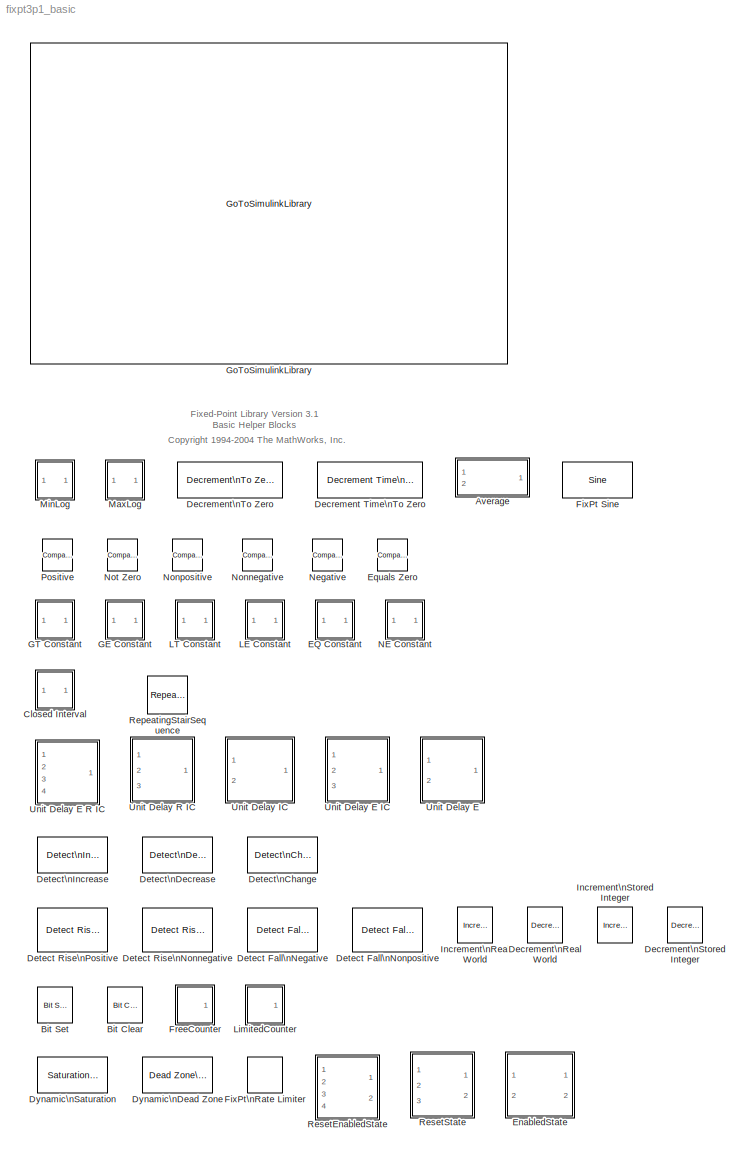
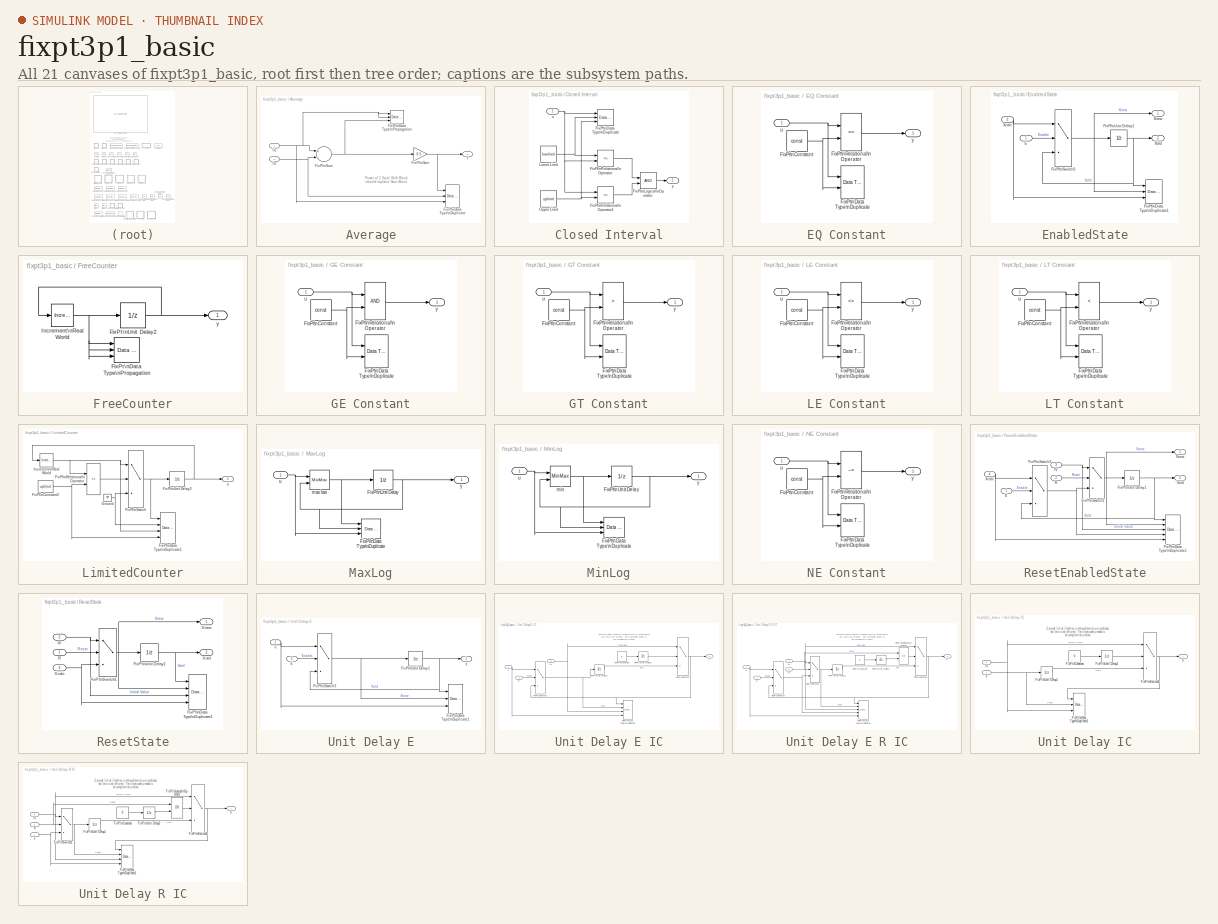
[diagram: thumbnail index - all 21 canvases of the model, root first then tree order]
MODEL fixpt3p1_basic
KIND library
BLOCK [SubSystem] Average
  MaskDescription = Compute the average of the two inputs.
  MaskDisplay = fprintf('(u1+u2) / 2')\npatch([2 2 10 10 4 4 8 8 4 4 2 ],[2 10 10 8 8 6 6 4 4 2 2 ],[0 0 0],'bottom-right');
  MaskHelp = web(fpbhelp('average'));
  MaskIconFrame = on
  MaskIconOpaque = on
  MaskIconRotate = none
  MaskIconUnits = normalized
  MaskSelfModifiable = on
  MaskType = Fixed-Point Average
  MinAlgLoopOccurrences = off
  Ports = [2, 1]
  PropExecContextAcrossSSBoundary = on
  RTWSystemCode = Auto
  TreatAsAtomicUnit = off
BLOCK [Reference] Average/FixPt\nData Type\nDuplicate  REF=simulink/Signal\nAttributes/Data Type\nDuplicate
  NumInputPorts = 3
  Ports = [3]
  SourceBlock = simulink/Signal\nAttributes/Data Type\nDuplicate
  SourceType = Data Type Duplicate
BLOCK [Reference] Average/FixPt\nData Type\nPropagation  REF=simulink/Signal\nAttributes/Data Type\nPropagation
  BiasAdd = 0
  BiasBase = Bias1+Bias2
  BiasMult = 1
  IfRefDouble = double
  IfRefSingle = single
  IsSigned = IsSigned1
  NumBitsAdd = 0
  NumBitsAllowFinal = 1:128
  NumBitsBase = NumBits1
  NumBitsMult = 2
  Ports = [3]
  PropDataType = sfix(16)
  PropDataTypeMode = Inherit via propagation rule
  PropScaling = 2^-10
  PropScalingMode = Inherit via propagation rule
  SlopeAdd = 0
  SlopeBase = Slope1
  SlopeMult = 1
  SourceBlock = simulink/Signal\nAttributes/Data Type\nPropagation
  SourceType = Data Type Propagation
  ValuesUsedBestPrec = [5 -7]
BLOCK [Gain] Average/FixPt\nGain
  Gain = 0.5
  OutDataTypeMode = Inherit via back propagation
  OutScaling = 2^-10
  ParameterDataType = ufix(8)
  ParameterDataTypeMode = Specify via dialog
  ParameterScaling = 2^-1
  ParameterScalingMode = Use specified scaling
  SaturateOnIntegerOverflow = off
BLOCK [Sum] Average/FixPt\nSum
  InputSameDT = off
  OutDataTypeMode = Inherit via back propagation
  OutScaling = 2^-10
  Ports = [2, 1]
  SaturateOnIntegerOverflow = off
BLOCK [Inport] Average/U1
  IconDisplay = Port number
  LatchInput = off
BLOCK [Inport] Average/U2
  IconDisplay = Port number
  LatchInput = off
  Port = 2
BLOCK [Outport] Average/Y
  BusOutputAsStruct = off
  IconDisplay = Port number
  InitialOutput = 0
BLOCK [Reference] Bit Clear  REF=simulink/Logic and Bit\nOperations/Bit Clear
  Ports = [1, 1]
  ShowPortLabels = on
  SourceBlock = simulink/Logic and Bit\nOperations/Bit Clear
  SourceType = Bit Clear
  iBit = 0
BLOCK [Reference] Bit Set  REF=simulink/Logic and Bit\nOperations/Bit Set
  Ports = [1, 1]
  ShowPortLabels = on
  SourceBlock = simulink/Logic and Bit\nOperations/Bit Set
  SourceType = Bit Set
  iBit = 0
BLOCK [SubSystem] Closed Interval
  MaskCallbackString = |
  MaskDescription = If the input is in the closed interval between the lower limit and the upper limit, then the output is TRUE, otherwise it is FALSE.
  MaskDisplay = plot([0 1],[0.3 0.3],[0.3 0.3],[0 1],[0 0.2 0.2 0.55 0.55 1],[0.35 0.35 0.6 0.6 0.35 0.35]);\npatch([2 2 10 10 4 4 8 8 4 4 2 ],[2 10 10 8 8 6 6 4 4 2 2 ],[0 0 0],'bottom-right');
  MaskEnableString = on,on
  MaskIconFrame = on
  MaskIconOpaque = on
  MaskIconRotate = none
  MaskIconUnits = normalized
  MaskPromptString = Upper limit:|Lower Limit:
  MaskStyleString = edit,edit
  MaskTabNameString = ,
  MaskToolTipString = on,on
  MaskTunableValueString = on,on
  MaskType = Fixed-Point Closed Interval
  MaskValueString = 4|2
  MaskVarAliasString = ,
  MaskVariables = uplimit=@1;lowlimit=@2;
  MaskVisibilityString = on,on
  MinAlgLoopOccurrences = off
  Ports = [1, 1]
  PropExecContextAcrossSSBoundary = on
  RTWSystemCode = Auto
  TreatAsAtomicUnit = off
BLOCK [Reference] Closed Interval/FixPt\nData Type\nDuplicate  REF=simulink/Signal\nAttributes/Data Type\nDuplicate
  NumInputPorts = 3
  Ports = [3]
  SourceBlock = simulink/Signal\nAttributes/Data Type\nDuplicate
  SourceType = Data Type Duplicate
BLOCK [Logic] Closed Interval/FixPt\nLogical\nOperator
  AllPortsSameDT = off
  OutDataTypeMode = Specify via dialog
  Ports = [2, 1]
BLOCK [RelationalOperator] Closed Interval/FixPt\nRelational\nOperator
  InputSameDT = off
  LogicOutDataTypeMode = Specify via dialog
  Operator = <=
  ZeroCross = off
BLOCK [RelationalOperator] Closed Interval/FixPt\nRelational\nOperator1
  InputSameDT = off
  LogicOutDataTypeMode = Specify via dialog
  Operator = <=
  ZeroCross = off
BLOCK [Constant] Closed Interval/Lower Limit
  ConRadixGroup = Best Precision: Vector-wise
  OutDataTypeMode = Inherit via back propagation
  OutScaling = 2^-1000
  Value = lowlimit
BLOCK [Constant] Closed Interval/Upper Limit
  ConRadixGroup = Best Precision: Vector-wise
  OutDataTypeMode = Inherit via back propagation
  OutScaling = 2^-1000
  Value = uplimit
BLOCK [Inport] Closed Interval/u
  IconDisplay = Port number
  LatchInput = off
BLOCK [Outport] Closed Interval/y
  BusOutputAsStruct = off
  IconDisplay = Port number
BLOCK [Reference] Decrement Time\nTo Zero  REF=simulink/Additional Math\n& Discrete/Additional Math:\nIncrement - Decrement/Decrement Time\nTo Zero
  Ports = [1, 1]
  ShowPortLabels = on
  SourceBlock = simulink/Additional Math\n& Discrete/Additional Math:\nIncrement - Decrement/Decrement Time\nTo Zero
  SourceType = Decrement Time To Zero
BLOCK [Reference] Decrement\nReal World  REF=simulink/Additional Math\n& Discrete/Additional Math:\nIncrement - Decrement/Decrement\nReal World
  Ports = [1, 1]
  ShowPortLabels = on
  SourceBlock = simulink/Additional Math\n& Discrete/Additional Math:\nIncrement - Decrement/Decrement\nReal World
  SourceType = Real World Value Decrement
BLOCK [Reference] Decrement\nStored Integer  REF=simulink/Additional Math\n& Discrete/Additional Math:\nIncrement - Decrement/Decrement\nStored Integer
  Ports = [1, 1]
  ShowPortLabels = on
  SourceBlock = simulink/Additional Math\n& Discrete/Additional Math:\nIncrement - Decrement/Decrement\nStored Integer
  SourceType = Stored Integer Value Decrement
BLOCK [Reference] Decrement\nTo Zero  REF=simulink/Additional Math\n& Discrete/Additional Math:\nIncrement - Decrement/Decrement\nTo Zero
  Ports = [1, 1]
  ShowPortLabels = on
  SourceBlock = simulink/Additional Math\n& Discrete/Additional Math:\nIncrement - Decrement/Decrement\nTo Zero
  SourceType = Decrement To Zero
BLOCK [Reference] Detect Fall\nNegative  REF=simulink/Logic and Bit\nOperations/Detect Fall\nNegative
  Ports = [1, 1]
  ShowPortLabels = on
  SourceBlock = simulink/Logic and Bit\nOperations/Detect Fall\nNegative
  SourceType = Detect Fall Negative
  vinit = 0
BLOCK [Reference] Detect Fall\nNonpositive  REF=simulink/Logic and Bit\nOperations/Detect Fall\nNonpositive
  Ports = [1, 1]
  ShowPortLabels = on
  SourceBlock = simulink/Logic and Bit\nOperations/Detect Fall\nNonpositive
  SourceType = Detect Fall Nonpositive
  vinit = 0
BLOCK [Reference] Detect Rise\nNonnegative  REF=simulink/Logic and Bit\nOperations/Detect Rise\nNonnegative
  Ports = [1, 1]
  ShowPortLabels = on
  SourceBlock = simulink/Logic and Bit\nOperations/Detect Rise\nNonnegative
  SourceType = Detect Rise Nonnegative
  vinit = 0
BLOCK [Reference] Detect Rise\nPositive  REF=simulink/Logic and Bit\nOperations/Detect Rise\nPositive
  Ports = [1, 1]
  ShowPortLabels = on
  SourceBlock = simulink/Logic and Bit\nOperations/Detect Rise\nPositive
  SourceType = Detect Rise Positive
  vinit = 0
BLOCK [Reference] Detect\nChange  REF=simulink/Logic and Bit\nOperations/Detect\nChange
  Ports = [1, 1]
  ShowPortLabels = on
  SourceBlock = simulink/Logic and Bit\nOperations/Detect\nChange
  SourceType = Detect Change
  vinit = 0
BLOCK [Reference] Detect\nDecrease  REF=simulink/Logic and Bit\nOperations/Detect\nDecrease
  Ports = [1, 1]
  ShowPortLabels = on
  SourceBlock = simulink/Logic and Bit\nOperations/Detect\nDecrease
  SourceType = Detect Decrease
  vinit = 0.0
BLOCK [Reference] Detect\nIncrease  REF=simulink/Logic and Bit\nOperations/Detect\nIncrease
  Ports = [1, 1]
  ShowPortLabels = on
  SourceBlock = simulink/Logic and Bit\nOperations/Detect\nIncrease
  SourceType = Detect Increase
  vinit = 0.0
BLOCK [Reference] Dynamic\nDead Zone  REF=simulink/Discontinuities/Dead Zone\nDynamic
  Ports = [3, 1]
  ShowPortLabels = on
  SourceBlock = simulink/Discontinuities/Dead Zone\nDynamic
  SourceType = Dead Zone Dynamic
BLOCK [Reference] Dynamic\nSaturation  REF=simulink/Discontinuities/Saturation\nDynamic
  Ports = [3, 1]
  ShowPortLabels = on
  SourceBlock = simulink/Discontinuities/Saturation\nDynamic
  SourceType = Saturation Dynamic
BLOCK [SubSystem] EQ Constant
  MaskCallbackString = fixptdialog(gcbh)
  MaskDescription = Determine if a signal is equal to a constant.
  MaskDisplay = disp(str)\npatch([2 2 10 10 4 4 8 8 4 4 2 ],[2 10 10 8 8 6 6 4 4 2 2 ],[0 0 0],'bottom-right');
  MaskEnableString = on
  MaskHelp = web(fpbhelp('eqconstant'));
  MaskIconFrame = on
  MaskIconOpaque = on
  MaskIconRotate = none
  MaskIconUnits = normalized
  MaskInitialization = if length(const) == 1\n str = ['== ',num2str(const)];\nelse\n  str = '== C';\nend
  MaskPromptString = Constant value:
  MaskSelfModifiable = on
  MaskStyleString = edit
  MaskToolTipString = on
  MaskTunableValueString = on
  MaskType = Fixed-Point Equal To Constant
  MaskValueString = 3.0
  MaskVariables = const=@1;
  MaskVisibilityString = on
  MinAlgLoopOccurrences = off
  Ports = [1, 1]
  PropExecContextAcrossSSBoundary = on
  RTWSystemCode = Auto
  TreatAsAtomicUnit = off
BLOCK [Constant] EQ Constant/FixPt\nConstant
  OutDataTypeMode = Inherit via back propagation
  OutScaling = 1
  Value = const
BLOCK [Reference] EQ Constant/FixPt\nData Type\nDuplicate  REF=simulink/Signal\nAttributes/Data Type\nDuplicate
  NumInputPorts = 2
  Ports = [2]
  SourceBlock = simulink/Signal\nAttributes/Data Type\nDuplicate
  SourceType = Data Type Duplicate
BLOCK [RelationalOperator] EQ Constant/FixPt\nRelational\nOperator
  InputSameDT = off
  LogicOutDataTypeMode = Specify via dialog
  Operator = ==
  ZeroCross = off
BLOCK [Inport] EQ Constant/u
  IconDisplay = Port number
  LatchInput = off
BLOCK [Outport] EQ Constant/y
  BusOutputAsStruct = off
  IconDisplay = Port number
BLOCK [SubSystem] EnabledState
  MaskDescription = Resetable Enabled State\nStart\n  Xold = 0.0\nOutput\n  If E % Enabled\n     Xnew = Xcalc\n  else\n     Xnew = Xold % Stays the same\n  end\nUpdate\n    Xold = Xnew
  MaskDisplay = fprintf('State')\npatch([2 2 10 10 4 4 8 8 4 4 2 ],[2 10 10 8 8 6 6 4 4 2 2 ],[0 0 0],'bottom-right');
  MaskHelp = web(fpbhelp('enabledstate'));
  MaskIconFrame = on
  MaskIconOpaque = off
  MaskIconRotate = none
  MaskIconUnits = normalized
  MaskSelfModifiable = on
  MaskType = Fixed-Point Reset Enabled State
  MinAlgLoopOccurrences = off
  Ports = [2, 2]
  PropExecContextAcrossSSBoundary = on
  RTWSystemCode = Auto
  TreatAsAtomicUnit = off
BLOCK [Inport] EnabledState/E
  IconDisplay = Port number
  LatchInput = off
BLOCK [Reference] EnabledState/FixPt\nData Type\nDuplicate1  REF=simulink/Signal\nAttributes/Data Type\nDuplicate
  NumInputPorts = 3
  Ports = [3]
  SourceBlock = simulink/Signal\nAttributes/Data Type\nDuplicate
  SourceType = Data Type Duplicate
BLOCK [Switch] EnabledState/FixPt\nSwitch3
  InputSameDT = off
  OutDataTypeMode = Inherit via back propagation
  SaturateOnIntegerOverflow = off
  Threshold = 1
  ZeroCross = off
BLOCK [UnitDelay] EnabledState/FixPt\nUnit Delay1
  SampleTime = -1
  X0 = 0.0
BLOCK [Inport] EnabledState/Xcalc
  IconDisplay = Port number
  LatchInput = off
  Port = 2
BLOCK [Outport] EnabledState/Xnew
  BusOutputAsStruct = off
  IconDisplay = Port number
BLOCK [Outport] EnabledState/Xold
  BusOutputAsStruct = off
  IconDisplay = Port number
  Port = 2
BLOCK [Reference] Equals Zero  REF=simulink/Logic and Bit\nOperations/Compare\nTo Zero
  LogicOutDataTypeMode = uint8
  Ports = [1, 1]
  ShowPortLabels = on
  SourceBlock = simulink/Logic and Bit\nOperations/Compare\nTo Zero
  SourceType = Compare To Zero
  relop = ==
BLOCK [Reference] FixPt Sine  REF=simulink/Lookup\nTables/Sine
  NumDataPoints = (2^5)+1
  Ports = [1, 1]
  ShowPortLabels = on
  SourceBlock = simulink/Lookup\nTables/Sine
  SourceType = Sine
BLOCK [RateLimiter] FixPt\nRate Limiter
  FallingSlewLimit = -2
  RisingSlewLimit = 2
BLOCK [SubSystem] FreeCounter
  MaskCallbackString = |
  MaskDescription = This block is a counter that overflows back to zero after it has reached the maximum value possible for the specified number of bits. The count is always initialized to zero.  The output is normally an unsigned integer.\n\nWARNING: This block is intended to overflow.  When global doubles override is on, this block will not wrap back to zero as expected.
  MaskDisplay = plot( 0.05+0.9/8*[0 1 1 2 2 3 3 4 4 5 5 6 6 7 7 8 8], 0.3+0.65/3*[0 0 1 1 2 2 3 3 0 0 1 1 2 2 3 3 0] )\npatch([2 2 10 10 4 4 8 8 4 4 2 ],[2 10 10 8 8 6 6 4 4 2 2 ],[0 0 0],'bottom-right');
  MaskEnableString = on,on
  MaskHelp = web(fpbhelp('freecounter'));
  MaskIconFrame = on
  MaskIconOpaque = on
  MaskIconRotate = none
  MaskIconUnits = normalized
  MaskPromptString = Number of Bits|Sample time:
  MaskSelfModifiable = on
  MaskStyleString = edit,edit
  MaskTabNameString = ,
  MaskToolTipString = on,on
  MaskTunableValueString = on,on
  MaskType = Fixed-Point Free Counter
  MaskValueString = 16|-1
  MaskVarAliasString = ,
  MaskVariables = NumBits=@1;tsamp=@2;
  MaskVisibilityString = on,on
  MinAlgLoopOccurrences = off
  Ports = [0, 1]
  PropExecContextAcrossSSBoundary = on
  RTWSystemCode = Auto
  TreatAsAtomicUnit = off
BLOCK [Reference] FreeCounter/FixPt\nData Type\nPropagation  REF=simulink/Signal\nAttributes/Data Type\nPropagation
  BiasAdd = 0
  BiasBase = Bias1
  BiasMult = 1
  IfRefDouble = double
  IfRefSingle = single
  IsSigned = IsSigned1 or IsSigned2
  NumBitsAdd = 0
  NumBitsAllowFinal = 1:128
  NumBitsBase = max([NumBits1 NumBits2])
  NumBitsMult = 1
  Ports = [3]
  PropDataType = uint(NumBits)
  PropDataTypeMode = Specify via dialog
  PropScaling = 1
  PropScalingMode = Specify via dialog
  SlopeAdd = 0
  SlopeBase = min([Slope1 Slope2])
  SlopeMult = 1
  SourceBlock = simulink/Signal\nAttributes/Data Type\nPropagation
  SourceType = Data Type Propagation
  ValuesUsedBestPrec = [5 -7]
BLOCK [UnitDelay] FreeCounter/FixPt\nUnit Delay2
  SampleTime = tsamp
  X0 = 0.0
BLOCK [Reference] FreeCounter/Increment\nReal World  REF=fixpt3p1_basic/Increment\nReal World  (lib defined in mdl_774a32534227)
  Ports = [1, 1]
  ShowPortLabels = on
  SourceBlock = fixpt3p1_basic/Increment\nReal World
  SourceType = Fixed-Point Real World Value Increment
BLOCK [Outport] FreeCounter/y
  BusOutputAsStruct = off
  IconDisplay = Port number
BLOCK [SubSystem] GE Constant
  MaskCallbackString = fixptdialog(gcbh)
  MaskDescription = Determine if a signal is greater than or equal to a constant.
  MaskDisplay = disp(str)\npatch([2 2 10 10 4 4 8 8 4 4 2 ],[2 10 10 8 8 6 6 4 4 2 2 ],[0 0 0],'bottom-right');
  MaskEnableString = on
  MaskHelp = web(fpbhelp('geconstant'));
  MaskIconFrame = on
  MaskIconOpaque = on
  MaskIconRotate = none
  MaskIconUnits = normalized
  MaskInitialization = if length(const) == 1\n str = ['>= ',num2str(const)];\nelse\n  str = '>= C';\nend
  MaskPromptString = Constant value:
  MaskSelfModifiable = on
  MaskStyleString = edit
  MaskToolTipString = on
  MaskTunableValueString = on
  MaskType = Fixed-Point Greater Than or Equal To Constant
  MaskValueString = 3.0
  MaskVariables = const=@1;
  MaskVisibilityString = on
  MinAlgLoopOccurrences = off
  Ports = [1, 1]
  PropExecContextAcrossSSBoundary = on
  RTWSystemCode = Auto
  TreatAsAtomicUnit = off
BLOCK [Constant] GE Constant/FixPt\nConstant
  OutDataTypeMode = Inherit via back propagation
  OutScaling = 1
  Value = const
BLOCK [Reference] GE Constant/FixPt\nData Type\nDuplicate  REF=simulink/Signal\nAttributes/Data Type\nDuplicate
  NumInputPorts = 2
  Ports = [2]
  SourceBlock = simulink/Signal\nAttributes/Data Type\nDuplicate
  SourceType = Data Type Duplicate
BLOCK [RelationalOperator] GE Constant/FixPt\nRelational\nOperator
  InputSameDT = off
  LogicOutDataTypeMode = Specify via dialog
  ZeroCross = off
BLOCK [Inport] GE Constant/u
  IconDisplay = Port number
  LatchInput = off
BLOCK [Outport] GE Constant/y
  BusOutputAsStruct = off
  IconDisplay = Port number
BLOCK [SubSystem] GT Constant
  MaskCallbackString = fixptdialog(gcbh)
  MaskDescription = Determine if a signal is strictly greater than a constant.
  MaskDisplay = disp(str)\npatch([2 2 10 10 4 4 8 8 4 4 2 ],[2 10 10 8 8 6 6 4 4 2 2 ],[0 0 0],'bottom-right');
  MaskEnableString = on
  MaskHelp = web(fpbhelp('gtconstant'));
  MaskIconFrame = on
  MaskIconOpaque = on
  MaskIconRotate = none
  MaskIconUnits = normalized
  MaskInitialization = if length(const) == 1\n str = ['> ',num2str(const)];\nelse\n  str = '> C';\nend
  MaskPromptString = Constant value:
  MaskSelfModifiable = on
  MaskStyleString = edit
  MaskToolTipString = on
  MaskTunableValueString = on
  MaskType = Fixed-Point Strictly Greater Than Constant
  MaskValueString = 3.0
  MaskVariables = const=@1;
  MaskVisibilityString = on
  MinAlgLoopOccurrences = off
  Ports = [1, 1]
  PropExecContextAcrossSSBoundary = on
  RTWSystemCode = Auto
  TreatAsAtomicUnit = off
BLOCK [Constant] GT Constant/FixPt\nConstant
  OutDataTypeMode = Inherit via back propagation
  OutScaling = 1
  Value = const
BLOCK [Reference] GT Constant/FixPt\nData Type\nDuplicate  REF=simulink/Signal\nAttributes/Data Type\nDuplicate
  NumInputPorts = 2
  Ports = [2]
  SourceBlock = simulink/Signal\nAttributes/Data Type\nDuplicate
  SourceType = Data Type Duplicate
BLOCK [RelationalOperator] GT Constant/FixPt\nRelational\nOperator
  InputSameDT = off
  LogicOutDataTypeMode = Specify via dialog
  Operator = >
  ZeroCross = off
BLOCK [Inport] GT Constant/u
  IconDisplay = Port number
  LatchInput = off
BLOCK [Outport] GT Constant/y
  BusOutputAsStruct = off
  IconDisplay = Port number
BLOCK [Reference] GoToSimulinkLibrary  REF=fixpt_lib_4/GoToSimulinkLibrary  (lib defined in mdl_ef9dacb0d1df)
  Ports = []
  ShowPortLabels = on
  SourceBlock = fixpt_lib_4/GoToSimulinkLibrary
  SourceType = GoToSimulinkLibrary
BLOCK [Reference] Increment\nReal World  REF=simulink/Additional Math\n& Discrete/Additional Math:\nIncrement - Decrement/Increment\nReal World
  Ports = [1, 1]
  ShowPortLabels = on
  SourceBlock = simulink/Additional Math\n& Discrete/Additional Math:\nIncrement - Decrement/Increment\nReal World
  SourceType = Real World Value Increment
BLOCK [Reference] Increment\nStored Integer  REF=simulink/Additional Math\n& Discrete/Additional Math:\nIncrement - Decrement/Increment\nStored Integer
  Ports = [1, 1]
  ShowPortLabels = on
  SourceBlock = simulink/Additional Math\n& Discrete/Additional Math:\nIncrement - Decrement/Increment\nStored Integer
  SourceType = Stored Integer Value Increment
BLOCK [SubSystem] LE Constant
  MaskCallbackString = fixptdialog(gcbh)
  MaskDescription = Determine if a signal is less than or equal to a constant.
  MaskDisplay = disp(str)\npatch([2 2 10 10 4 4 8 8 4 4 2 ],[2 10 10 8 8 6 6 4 4 2 2 ],[0 0 0],'bottom-right');
  MaskEnableString = on
  MaskHelp = web(fpbhelp('leconstant'));
  MaskIconFrame = on
  MaskIconOpaque = on
  MaskIconRotate = none
  MaskIconUnits = normalized
  MaskInitialization = if length(const) == 1\n str = ['<= ',num2str(const)];\nelse\n  str = '<= C';\nend
  MaskPromptString = Constant value:
  MaskSelfModifiable = on
  MaskStyleString = edit
  MaskToolTipString = on
  MaskTunableValueString = on
  MaskType = Fixed-Point Less Than Or Equal To Constant
  MaskValueString = 3.0
  MaskVariables = const=@1;
  MaskVisibilityString = on
  MinAlgLoopOccurrences = off
  Ports = [1, 1]
  PropExecContextAcrossSSBoundary = on
  RTWSystemCode = Auto
  TreatAsAtomicUnit = off
BLOCK [Constant] LE Constant/FixPt\nConstant
  OutDataTypeMode = Inherit via back propagation
  OutScaling = 1
  Value = const
BLOCK [Reference] LE Constant/FixPt\nData Type\nDuplicate  REF=simulink/Signal\nAttributes/Data Type\nDuplicate
  NumInputPorts = 2
  Ports = [2]
  SourceBlock = simulink/Signal\nAttributes/Data Type\nDuplicate
  SourceType = Data Type Duplicate
BLOCK [RelationalOperator] LE Constant/FixPt\nRelational\nOperator
  InputSameDT = off
  LogicOutDataTypeMode = Specify via dialog
  Operator = <=
  ZeroCross = off
BLOCK [Inport] LE Constant/u
  IconDisplay = Port number
  LatchInput = off
BLOCK [Outport] LE Constant/y
  BusOutputAsStruct = off
  IconDisplay = Port number
BLOCK [SubSystem] LT Constant
  MaskCallbackString = fixptdialog(gcbh)
  MaskDescription = Determine if a signal is strictly less than a constant.
  MaskDisplay = disp(str)\npatch([2 2 10 10 4 4 8 8 4 4 2 ],[2 10 10 8 8 6 6 4 4 2 2 ],[0 0 0],'bottom-right');
  MaskEnableString = on
  MaskHelp = web(fpbhelp('ltconstant'));
  MaskIconFrame = on
  MaskIconOpaque = on
  MaskIconRotate = none
  MaskIconUnits = normalized
  MaskInitialization = if length(const) == 1\n str = ['< ',num2str(const)];\nelse\n  str = '< C';\nend
  MaskPromptString = Constant value:
  MaskSelfModifiable = on
  MaskStyleString = edit
  MaskToolTipString = on
  MaskTunableValueString = on
  MaskType = Fixed-Point Strictly Less Than Constant
  MaskValueString = 3.0
  MaskVariables = const=@1;
  MaskVisibilityString = on
  MinAlgLoopOccurrences = off
  Ports = [1, 1]
  PropExecContextAcrossSSBoundary = on
  RTWSystemCode = Auto
  TreatAsAtomicUnit = off
BLOCK [Constant] LT Constant/FixPt\nConstant
  OutDataTypeMode = Inherit via back propagation
  OutScaling = 1
  Value = const
BLOCK [Reference] LT Constant/FixPt\nData Type\nDuplicate  REF=simulink/Signal\nAttributes/Data Type\nDuplicate
  NumInputPorts = 2
  Ports = [2]
  SourceBlock = simulink/Signal\nAttributes/Data Type\nDuplicate
  SourceType = Data Type Duplicate
BLOCK [RelationalOperator] LT Constant/FixPt\nRelational\nOperator
  InputSameDT = off
  LogicOutDataTypeMode = Specify via dialog
  Operator = <
  ZeroCross = off
BLOCK [Inport] LT Constant/u
  IconDisplay = Port number
  LatchInput = off
BLOCK [Outport] LT Constant/y
  BusOutputAsStruct = off
  IconDisplay = Port number
BLOCK [SubSystem] LimitedCounter
  MaskCallbackString = |
  MaskDescription = This block is a counter that wraps back to zero after it has output the specified upper limit.  The count is always initialized to zero.  The output is normally an unsigned integer of 8, 16, or 32 bits.  The smallest number of bits needed to represent the upper limit is used.
  MaskDisplay = plot( 0.15+0.8/8*[0 1 1 2 2 3 3 4 4 5 5 6 6 7 7 8 8], 0.3+0.65/3*[0 0 1 1 2 2 3 3 0 0 1 1 2 2 3 3 0] )\ntext(0.05,0.85,'lim')\npatch([2 2 10 10 4 4 8 8 4 4 2 ],[2 10 10 8 8 6 6 4 4 2 2 ],[0 0 0],'bottom-right');
  MaskEnableString = on,on
  MaskHelp = web(fpbhelp('limitedcounter'));
  MaskIconFrame = on
  MaskIconOpaque = on
  MaskIconRotate = none
  MaskIconUnits = normalized
  MaskInitialization = upMax = max(uplimit);\nif upMax <= (2^8-1)\n  nbits = 8;\nelseif upMax <= (2^16-1)\n  nbits = 16;\nelseif upMax <= (2^32-1)\n  nbits = 32;\nelseif upMax <= (2^64-1)\n  nbits = 64;\nelse\n  nbits = 128;\nend
  MaskPromptString = Upper limit:|Sample time:
  MaskSelfModifiable = on
  MaskStyleString = edit,edit
  MaskTabNameString = ,
  MaskToolTipString = on,on
  MaskTunableValueString = on,on
  MaskType = Fixed-Point Limited Counter
  MaskValueString = 7|-1
  MaskVarAliasString = ,
  MaskVariables = uplimit=@1;tsamp=@2;
  MaskVisibilityString = on,on
  MinAlgLoopOccurrences = off
  Ports = [0, 1]
  PropExecContextAcrossSSBoundary = on
  RTWSystemCode = Auto
  TreatAsAtomicUnit = off
BLOCK [Constant] LimitedCounter/FixPt\nConstant2
  OutDataType = uint(nbits)
  OutDataTypeMode = Specify via dialog
  OutScaling = 1
  Value = uplimit
BLOCK [Reference] LimitedCounter/FixPt\nData Type\nDuplicate1  REF=simulink/Signal\nAttributes/Data Type\nDuplicate
  NumInputPorts = 4
  Ports = [4]
  SourceBlock = simulink/Signal\nAttributes/Data Type\nDuplicate
  SourceType = Data Type Duplicate
BLOCK [RelationalOperator] LimitedCounter/FixPt\nRelational\nOperator
  InputSameDT = off
  LogicOutDataTypeMode = Specify via dialog
  Operator = <=
  ZeroCross = off
BLOCK [Switch] LimitedCounter/FixPt\nSwitch
  InputSameDT = off
  OutDataTypeMode = Inherit via back propagation
  SaturateOnIntegerOverflow = off
  Threshold = 1
  ZeroCross = off
BLOCK [UnitDelay] LimitedCounter/FixPt\nUnit Delay2
  SampleTime = tsamp
  X0 = 0.0
BLOCK [Ground] LimitedCounter/Ground
BLOCK [Reference] LimitedCounter/Increment\nReal World  REF=fixpt3p1_basic/Increment\nReal World  (lib defined in mdl_774a32534227)
  Ports = [1, 1]
  ShowPortLabels = on
  SourceBlock = fixpt3p1_basic/Increment\nReal World
  SourceType = Fixed-Point Real World Value Increment
BLOCK [Outport] LimitedCounter/y
  BusOutputAsStruct = off
  IconDisplay = Port number
BLOCK [SubSystem] MaxLog
  MaskDescription = Output is the maximum value of the input since the simulation began.\n\nThe initial value is currently set to zero!!!!!!
  MaskDisplay = disp('max\\nlog')\npatch([2 2 10 10 4 4 8 8 4 4 2 ],[2 10 10 8 8 6 6 4 4 2 2 ],[0 0 0],'bottom-right');
  MaskHelp = web(fpbhelp('maxlog'));
  MaskIconFrame = on
  MaskIconOpaque = on
  MaskIconRotate = none
  MaskIconUnits = normalized
  MaskSelfModifiable = on
  MaskType = Fixed-Point Running Maximum
  MinAlgLoopOccurrences = off
  Ports = [1, 1]
  PropExecContextAcrossSSBoundary = on
  RTWSystemCode = Auto
  TreatAsAtomicUnit = off
BLOCK [Reference] MaxLog/FixPt\nData Type\nDuplicate  REF=simulink/Signal\nAttributes/Data Type\nDuplicate
  NumInputPorts = 3
  Ports = [3]
  SourceBlock = simulink/Signal\nAttributes/Data Type\nDuplicate
  SourceType = Data Type Duplicate
BLOCK [UnitDelay] MaxLog/FixPt\nUnit Delay
  SampleTime = -1
  X0 = 0.0
BLOCK [MinMax] MaxLog/max low
  Function = max
  InputSameDT = off
  Inputs = 2
  OutDataTypeMode = Inherit via back propagation
  OutScaling = 2^-10
  Ports = [2, 1]
  SaturateOnIntegerOverflow = off
  ZeroCross = off
BLOCK [Inport] MaxLog/u
  IconDisplay = Port number
  LatchInput = off
BLOCK [Outport] MaxLog/y
  BusOutputAsStruct = off
  IconDisplay = Port number
BLOCK [SubSystem] MinLog
  MaskDescription = Output is the minimum value of the input since the simulation began.\n\nThe initial value is currently set to zero!!!!!!
  MaskDisplay = disp('min\\nlog')\npatch([2 2 10 10 4 4 8 8 4 4 2 ],[2 10 10 8 8 6 6 4 4 2 2 ],[0 0 0],'bottom-right');
  MaskHelp = web(fpbhelp('minlog'));
  MaskIconFrame = on
  MaskIconOpaque = on
  MaskIconRotate = none
  MaskIconUnits = normalized
  MaskSelfModifiable = on
  MaskType = Fixed-Point Running Minimum
  MinAlgLoopOccurrences = off
  Ports = [1, 1]
  PropExecContextAcrossSSBoundary = on
  RTWSystemCode = Auto
  TreatAsAtomicUnit = off
BLOCK [Reference] MinLog/FixPt\nData Type\nDuplicate  REF=simulink/Signal\nAttributes/Data Type\nDuplicate
  NumInputPorts = 3
  Ports = [3]
  SourceBlock = simulink/Signal\nAttributes/Data Type\nDuplicate
  SourceType = Data Type Duplicate
BLOCK [UnitDelay] MinLog/FixPt\nUnit Delay
  SampleTime = -1
  X0 = 0.0
BLOCK [MinMax] MinLog/min
  Function = min
  InputSameDT = off
  Inputs = 2
  OutDataTypeMode = Inherit via back propagation
  OutScaling = 2^-10
  Ports = [2, 1]
  SaturateOnIntegerOverflow = off
  ZeroCross = off
BLOCK [Inport] MinLog/u
  IconDisplay = Port number
  LatchInput = off
BLOCK [Outport] MinLog/y
  BusOutputAsStruct = off
  IconDisplay = Port number
BLOCK [SubSystem] NE Constant
  MaskCallbackString = fixptdialog(gcbh)
  MaskDescription = Determine if a signal is not equal to a constant.
  MaskDisplay = disp(str)\npatch([2 2 10 10 4 4 8 8 4 4 2 ],[2 10 10 8 8 6 6 4 4 2 2 ],[0 0 0],'bottom-right');
  MaskEnableString = on
  MaskHelp = web(fpbhelp('neconstant'));
  MaskIconFrame = on
  MaskIconOpaque = on
  MaskIconRotate = none
  MaskIconUnits = normalized
  MaskInitialization = if length(const) == 1\n str = ['~= ',num2str(const)];\nelse\n  str = '~= C';\nend
  MaskPromptString = Constant value:
  MaskSelfModifiable = on
  MaskStyleString = edit
  MaskToolTipString = on
  MaskTunableValueString = on
  MaskType = Fixed-Point Not Equal To Constant
  MaskValueString = 3.0
  MaskVariables = const=@1;
  MaskVisibilityString = on
  MinAlgLoopOccurrences = off
  Ports = [1, 1]
  PropExecContextAcrossSSBoundary = on
  RTWSystemCode = Auto
  TreatAsAtomicUnit = off
BLOCK [Constant] NE Constant/FixPt\nConstant
  OutDataTypeMode = Inherit via back propagation
  OutScaling = 1
  Value = const
BLOCK [Reference] NE Constant/FixPt\nData Type\nDuplicate  REF=simulink/Signal\nAttributes/Data Type\nDuplicate
  NumInputPorts = 2
  Ports = [2]
  SourceBlock = simulink/Signal\nAttributes/Data Type\nDuplicate
  SourceType = Data Type Duplicate
BLOCK [RelationalOperator] NE Constant/FixPt\nRelational\nOperator
  InputSameDT = off
  LogicOutDataTypeMode = Specify via dialog
  Operator = ~=
  ZeroCross = off
BLOCK [Inport] NE Constant/u
  IconDisplay = Port number
  LatchInput = off
BLOCK [Outport] NE Constant/y
  BusOutputAsStruct = off
  IconDisplay = Port number
BLOCK [Reference] Negative  REF=simulink/Logic and Bit\nOperations/Compare\nTo Zero
  LogicOutDataTypeMode = uint8
  Ports = [1, 1]
  ShowPortLabels = on
  SourceBlock = simulink/Logic and Bit\nOperations/Compare\nTo Zero
  SourceType = Compare To Zero
  relop = <
BLOCK [Reference] Nonnegative  REF=simulink/Logic and Bit\nOperations/Compare\nTo Zero
  LogicOutDataTypeMode = uint8
  Ports = [1, 1]
  ShowPortLabels = on
  SourceBlock = simulink/Logic and Bit\nOperations/Compare\nTo Zero
  SourceType = Compare To Zero
  relop = >=
BLOCK [Reference] Nonpositive  REF=simulink/Logic and Bit\nOperations/Compare\nTo Zero
  LogicOutDataTypeMode = uint8
  Ports = [1, 1]
  ShowPortLabels = on
  SourceBlock = simulink/Logic and Bit\nOperations/Compare\nTo Zero
  SourceType = Compare To Zero
  relop = <=
BLOCK [Reference] Not Zero  REF=simulink/Logic and Bit\nOperations/Compare\nTo Zero
  LogicOutDataTypeMode = uint8
  Ports = [1, 1]
  ShowPortLabels = on
  SourceBlock = simulink/Logic and Bit\nOperations/Compare\nTo Zero
  SourceType = Compare To Zero
  relop = ~=
BLOCK [Reference] Positive  REF=simulink/Logic and Bit\nOperations/Compare\nTo Zero
  LogicOutDataTypeMode = uint8
  Ports = [1, 1]
  ShowPortLabels = on
  SourceBlock = simulink/Logic and Bit\nOperations/Compare\nTo Zero
  SourceType = Compare To Zero
  relop = >
BLOCK [Reference] RepeatingStairSequence  REF=simulink/Sources/Repeating\nSequence\nStair
  ConRadixGroup = Best Precision: Vector-wise
  LockScale = off
  OutDataType = sfix(16)
  OutScaling = 2^-10
  OutValues = [3 1 4 2 1].'
  OutputDataTypeScalingMode = Specify via dialog
  Ports = [0, 1]
  ShowPortLabels = on
  SourceBlock = simulink/Sources/Repeating\nSequence\nStair
  SourceType = Repeating Sequence Stair
  tsamp = -1
BLOCK [SubSystem] ResetEnabledState
  MaskDescription = Resetable Enabled State\nStart\n  Xold = 0.0\nOutput\n  If R % Reset\n     Xnew = IV\n  elseif E % Enabled\n     Xnew = Xcalc\n  else\n     Xnew = Xold % Stays the same\n  end\nUpdate\n    Xold = Xnew
  MaskDisplay = fprintf('State')\npatch([2 2 10 10 4 4 8 8 4 4 2 ],[2 10 10 8 8 6 6 4 4 2 2 ],[0 0 0],'bottom-right');
  MaskHelp = web(fpbhelp('resetenabledstate'));
  MaskIconFrame = on
  MaskIconOpaque = off
  MaskIconRotate = none
  MaskIconUnits = normalized
  MaskSelfModifiable = on
  MaskType = Fixed-Point Reset Enabled State
  MinAlgLoopOccurrences = off
  Ports = [4, 2]
  PropExecContextAcrossSSBoundary = on
  RTWSystemCode = Auto
  TreatAsAtomicUnit = off
BLOCK [Inport] ResetEnabledState/E
  IconDisplay = Port number
  LatchInput = off
BLOCK [Reference] ResetEnabledState/FixPt\nData Type\nDuplicate1  REF=simulink/Signal\nAttributes/Data Type\nDuplicate
  NumInputPorts = 5
  Ports = [5]
  SourceBlock = simulink/Signal\nAttributes/Data Type\nDuplicate
  SourceType = Data Type Duplicate
BLOCK [Switch] ResetEnabledState/FixPt\nSwitch1
  InputSameDT = off
  OutDataTypeMode = Inherit via back propagation
  SaturateOnIntegerOverflow = off
  Threshold = 1
  ZeroCross = off
BLOCK [Switch] ResetEnabledState/FixPt\nSwitch3
  InputSameDT = off
  OutDataTypeMode = Inherit via back propagation
  SaturateOnIntegerOverflow = off
  Threshold = 1
  ZeroCross = off
BLOCK [UnitDelay] ResetEnabledState/FixPt\nUnit Delay1
  SampleTime = -1
  X0 = 0.0
BLOCK [Inport] ResetEnabledState/IV
  IconDisplay = Port number
  LatchInput = off
  Port = 3
BLOCK [Inport] ResetEnabledState/R
  IconDisplay = Port number
  LatchInput = off
  Port = 2
BLOCK [Inport] ResetEnabledState/Xcalc
  IconDisplay = Port number
  LatchInput = off
  Port = 4
BLOCK [Outport] ResetEnabledState/Xnew
  BusOutputAsStruct = off
  IconDisplay = Port number
BLOCK [Outport] ResetEnabledState/Xold
  BusOutputAsStruct = off
  IconDisplay = Port number
  Port = 2
BLOCK [SubSystem] ResetState
  MaskDescription = Resetable State\nStart\n  Xold = 0.0\nOutput\n  If R % Reset\n     Xnew = IV\n  else\n     Xnew = Xcalc\n  end\nUpdate\n    Xold = Xnew
  MaskDisplay = fprintf('State')\npatch([2 2 10 10 4 4 8 8 4 4 2 ],[2 10 10 8 8 6 6 4 4 2 2 ],[0 0 0],'bottom-right');
  MaskHelp = web(fpbhelp('resetstate'));
  MaskIconFrame = on
  MaskIconOpaque = off
  MaskIconRotate = none
  MaskIconUnits = normalized
  MaskSelfModifiable = on
  MaskType = Fixed-Point Reset State
  MinAlgLoopOccurrences = off
  Ports = [3, 2]
  PropExecContextAcrossSSBoundary = on
  RTWSystemCode = Auto
  TreatAsAtomicUnit = off
BLOCK [Reference] ResetState/FixPt\nData Type\nDuplicate1  REF=simulink/Signal\nAttributes/Data Type\nDuplicate
  NumInputPorts = 4
  Ports = [4]
  SourceBlock = simulink/Signal\nAttributes/Data Type\nDuplicate
  SourceType = Data Type Duplicate
BLOCK [Switch] ResetState/FixPt\nSwitch1
  InputSameDT = off
  OutDataTypeMode = Inherit via back propagation
  SaturateOnIntegerOverflow = off
  Threshold = 1
  ZeroCross = off
BLOCK [UnitDelay] ResetState/FixPt\nUnit Delay1
  SampleTime = -1
  X0 = 0.0
BLOCK [Inport] ResetState/IV
  IconDisplay = Port number
  LatchInput = off
  Port = 2
BLOCK [Inport] ResetState/R
  IconDisplay = Port number
  LatchInput = off
BLOCK [Inport] ResetState/Xcalc
  IconDisplay = Port number
  LatchInput = off
  Port = 3
BLOCK [Outport] ResetState/Xnew
  BusOutputAsStruct = off
  IconDisplay = Port number
BLOCK [Outport] ResetState/Xold
  BusOutputAsStruct = off
  IconDisplay = Port number
  Port = 2
BLOCK [SubSystem] Unit Delay E
  MaskCallbackString = |
  MaskDescription = Enabled Unit Delay\nStart\n  x = IC   % Initial Condition\nOutput\n  y = IC   % Initial Condition\nUpdate\n  If E   % Enabled\n     x = u\n  else\n     % x stays the same\n  end
  MaskDisplay = dpoly(1,[1 0],'z')\npatch([2 2 10 10 4 4 8 8 4 4 2 ],[2 10 10 8 8 6 6 4 4 2 2 ],[0 0 0],'bottom-right');
  MaskEnableString = on,on
  MaskHelp = web(fpbhelp('unitdelaye'));
  MaskIconFrame = on
  MaskIconOpaque = off
  MaskIconRotate = none
  MaskIconUnits = normalized
  MaskPromptString = Initial condition:|Sample time:
  MaskSelfModifiable = on
  MaskStyleString = edit,edit
  MaskTabNameString = ,
  MaskToolTipString = on,on
  MaskTunableValueString = on,on
  MaskType = Fixed-Point Unit Delay Enable
  MaskValueString = 0.0|-1
  MaskVarAliasString = ,
  MaskVariables = vinit=@1;tsamp=@2;
  MaskVisibilityString = on,on
  MinAlgLoopOccurrences = off
  Ports = [2, 1]
  PropExecContextAcrossSSBoundary = on
  RTWSystemCode = Auto
  TreatAsAtomicUnit = off
BLOCK [SubSystem] Unit Delay E IC
  MaskDescription = Enabled Unit Delay with External Initial Condition\nStart\n  x = IC   % Initial Condition\nOutput\n  y = IC   % Initial Condition\nUpdate\n  If E   % Enabled\n     x = u\n  else\n     % x stays the same\n  end
  MaskDisplay = dpoly(1,[1 0],'z')\npatch([2 2 10 10 4 4 8 8 4 4 2 ],[2 10 10 8 8 6 6 4 4 2 2 ],[0 0 0],'bottom-right');
  MaskEnableString = on
  MaskHelp = web(fpbhelp('unitdelayeic'));
  MaskIconFrame = on
  MaskIconOpaque = off
  MaskIconRotate = none
  MaskIconUnits = normalized
  MaskPromptString = Sample time:
  MaskSelfModifiable = on
  MaskStyleString = edit
  MaskToolTipString = on
  MaskTunableValueString = on
  MaskType = Fixed-Point Unit Delay Enable Initial_Condition
  MaskValueString = -1
  MaskVariables = tsamp=@1;
  MaskVisibilityString = on
  MinAlgLoopOccurrences = off
  Ports = [3, 1]
  PropExecContextAcrossSSBoundary = on
  RTWSystemCode = Auto
  TreatAsAtomicUnit = off
BLOCK [Inport] Unit Delay E IC/E
  IconDisplay = Port number
  LatchInput = off
  Port = 2
BLOCK [Constant] Unit Delay E IC/FixPt\nConstant
  OutDataType = uint(8)
  OutDataTypeMode = Specify via dialog
  OutScaling = 1
  Value = 0
BLOCK [Reference] Unit Delay E IC/FixPt\nData Type\nDuplicate1  REF=simulink/Signal\nAttributes/Data Type\nDuplicate
  NumInputPorts = 4
  Ports = [4]
  SourceBlock = simulink/Signal\nAttributes/Data Type\nDuplicate
  SourceType = Data Type Duplicate
BLOCK [Switch] Unit Delay E IC/FixPt\nSwitch2
  InputSameDT = off
  OutDataTypeMode = Inherit via back propagation
  SaturateOnIntegerOverflow = off
  Threshold = 1
  ZeroCross = off
BLOCK [Switch] Unit Delay E IC/FixPt\nSwitch3
  InputSameDT = off
  OutDataTypeMode = Inherit via back propagation
  SaturateOnIntegerOverflow = off
  Threshold = 1
  ZeroCross = off
BLOCK [UnitDelay] Unit Delay E IC/FixPt\nUnit Delay1
  SampleTime = tsamp
  X0 = 0.0
BLOCK [UnitDelay] Unit Delay E IC/FixPt\nUnit Delay2
  SampleTime = tsamp
  X0 = 1
BLOCK [Inport] Unit Delay E IC/IC
  IconDisplay = Port number
  LatchInput = off
  Port = 3
BLOCK [Inport] Unit Delay E IC/u
  IconDisplay = Port number
  LatchInput = off
BLOCK [Outport] Unit Delay E IC/y
  BusOutputAsStruct = off
  IconDisplay = Port number
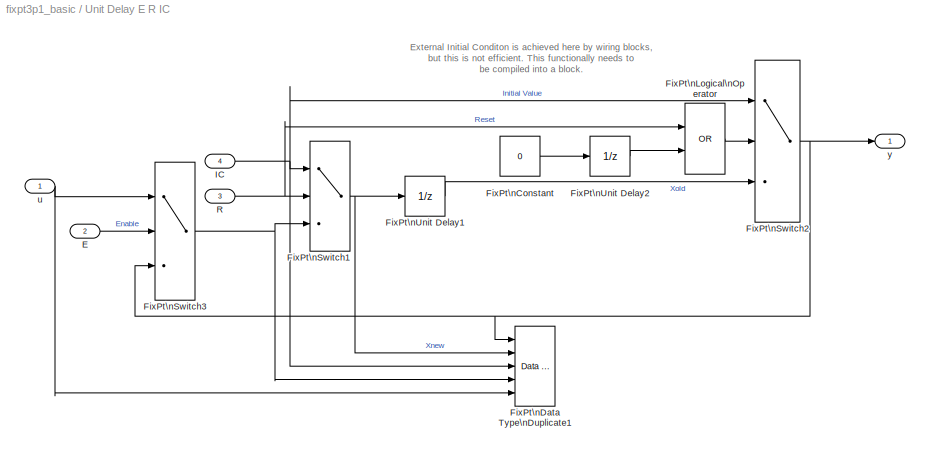
BLOCK [SubSystem] Unit Delay E R IC
  MaskDescription = Resetable Enabled Unit Delay with External Initial Condition\nStart\n  x = IC   % Initial Condition\nOutput\n  If R   % Reset\n     y = IC   % Initial Condition\n  else\n     y = x\n  end\nUpdate\n  If R   % Reset\n     x = IC   % Initial Condition\n  elseif E   % Enabled\n     x = u\n  else\n     % x stays the same\n  end
  MaskDisplay = dpoly(1,[1 0],'z')\npatch([2 2 10 10 4 4 8 8 4 4 2 ],[2 10 10 8 8 6 6 4 4 2 2 ],[0 0 0],'bottom-right');
  MaskEnableString = on
  MaskHelp = web(fpbhelp('unitdelayeric'));
  MaskIconFrame = on
  MaskIconOpaque = off
  MaskIconRotate = none
  MaskIconUnits = normalized
  MaskPromptString = Sample time:
  MaskSelfModifiable = on
  MaskStyleString = edit
  MaskToolTipString = on
  MaskTunableValueString = on
  MaskType = Fixed-Point Unit Delay Reset Enable Initial_Condition
  MaskValueString = -1
  MaskVariables = tsamp=@1;
  MaskVisibilityString = on
  MinAlgLoopOccurrences = off
  Ports = [4, 1]
  PropExecContextAcrossSSBoundary = on
  RTWSystemCode = Auto
  TreatAsAtomicUnit = off
BLOCK [Inport] Unit Delay E R IC/E
  IconDisplay = Port number
  LatchInput = off
  Port = 2
BLOCK [Constant] Unit Delay E R IC/FixPt\nConstant
  OutDataType = uint(8)
  OutDataTypeMode = Specify via dialog
  OutScaling = 1
  Value = 0
BLOCK [Reference] Unit Delay E R IC/FixPt\nData Type\nDuplicate1  REF=simulink/Signal\nAttributes/Data Type\nDuplicate
  NumInputPorts = 5
  Ports = [5]
  SourceBlock = simulink/Signal\nAttributes/Data Type\nDuplicate
  SourceType = Data Type Duplicate
BLOCK [Logic] Unit Delay E R IC/FixPt\nLogical\nOperator
  AllPortsSameDT = off
  Operator = OR
  OutDataTypeMode = Specify via dialog
  Ports = [2, 1]
BLOCK [Switch] Unit Delay E R IC/FixPt\nSwitch1
  InputSameDT = off
  OutDataTypeMode = Inherit via back propagation
  SaturateOnIntegerOverflow = off
  Threshold = 1
  ZeroCross = off
BLOCK [Switch] Unit Delay E R IC/FixPt\nSwitch2
  InputSameDT = off
  OutDataTypeMode = Inherit via back propagation
  SaturateOnIntegerOverflow = off
  Threshold = 1
  ZeroCross = off
BLOCK [Switch] Unit Delay E R IC/FixPt\nSwitch3
  InputSameDT = off
  OutDataTypeMode = Inherit via back propagation
  SaturateOnIntegerOverflow = off
  Threshold = 1
  ZeroCross = off
BLOCK [UnitDelay] Unit Delay E R IC/FixPt\nUnit Delay1
  SampleTime = tsamp
  X0 = 0.0
BLOCK [UnitDelay] Unit Delay E R IC/FixPt\nUnit Delay2
  SampleTime = tsamp
  X0 = 1
BLOCK [Inport] Unit Delay E R IC/IC
  IconDisplay = Port number
  LatchInput = off
  Port = 4
BLOCK [Inport] Unit Delay E R IC/R
  IconDisplay = Port number
  LatchInput = off
  Port = 3
BLOCK [Inport] Unit Delay E R IC/u
  IconDisplay = Port number
  LatchInput = off
BLOCK [Outport] Unit Delay E R IC/y
  BusOutputAsStruct = off
  IconDisplay = Port number
BLOCK [Inport] Unit Delay E/E
  IconDisplay = Port number
  LatchInput = off
  Port = 2
BLOCK [Reference] Unit Delay E/FixPt\nData Type\nDuplicate1  REF=simulink/Signal\nAttributes/Data Type\nDuplicate
  NumInputPorts = 3
  Ports = [3]
  SourceBlock = simulink/Signal\nAttributes/Data Type\nDuplicate
  SourceType = Data Type Duplicate
BLOCK [Switch] Unit Delay E/FixPt\nSwitch3
  InputSameDT = off
  OutDataTypeMode = Inherit via back propagation
  SaturateOnIntegerOverflow = off
  Threshold = 1
  ZeroCross = off
BLOCK [UnitDelay] Unit Delay E/FixPt\nUnit Delay1
  SampleTime = tsamp
  X0 = vinit
BLOCK [Inport] Unit Delay E/u
  IconDisplay = Port number
  LatchInput = off
BLOCK [Outport] Unit Delay E/y
  BusOutputAsStruct = off
  IconDisplay = Port number
BLOCK [SubSystem] Unit Delay IC
  MaskDescription = Unit Delay with External Initial Condition\nStart\n  x = IC   % Initial Condition\nOutput\n  y = x\nUpdate\n  x = u
  MaskDisplay = dpoly(1,[1 0],'z')\npatch([2 2 10 10 4 4 8 8 4 4 2 ],[2 10 10 8 8 6 6 4 4 2 2 ],[0 0 0],'bottom-right');
  MaskEnableString = on
  MaskHelp = web(fpbhelp('unitdelayic'));
  MaskIconFrame = on
  MaskIconOpaque = off
  MaskIconRotate = none
  MaskIconUnits = normalized
  MaskPromptString = Sample time:
  MaskSelfModifiable = on
  MaskStyleString = edit
  MaskToolTipString = on
  MaskTunableValueString = on
  MaskType = Fixed-Point Unit Delay Initial_Condition
  MaskValueString = -1
  MaskVariables = tsamp=@1;
  MaskVisibilityString = on
  MinAlgLoopOccurrences = off
  Ports = [2, 1]
  PropExecContextAcrossSSBoundary = on
  RTWSystemCode = Auto
  TreatAsAtomicUnit = off
BLOCK [Constant] Unit Delay IC/FixPt\nConstant
  OutDataType = uint(8)
  OutDataTypeMode = Specify via dialog
  OutScaling = 1
  Value = 0
BLOCK [Reference] Unit Delay IC/FixPt\nData Type\nDuplicate1  REF=simulink/Signal\nAttributes/Data Type\nDuplicate
  NumInputPorts = 3
  Ports = [3]
  SourceBlock = simulink/Signal\nAttributes/Data Type\nDuplicate
  SourceType = Data Type Duplicate
BLOCK [Switch] Unit Delay IC/FixPt\nSwitch2
  InputSameDT = off
  OutDataTypeMode = Inherit via back propagation
  SaturateOnIntegerOverflow = off
  Threshold = 1
  ZeroCross = off
BLOCK [UnitDelay] Unit Delay IC/FixPt\nUnit Delay1
  SampleTime = tsamp
  X0 = 0.0
BLOCK [UnitDelay] Unit Delay IC/FixPt\nUnit Delay2
  SampleTime = tsamp
  X0 = 1
BLOCK [Inport] Unit Delay IC/IC
  IconDisplay = Port number
  LatchInput = off
  Port = 2
BLOCK [Inport] Unit Delay IC/u
  IconDisplay = Port number
  LatchInput = off
BLOCK [Outport] Unit Delay IC/y
  BusOutputAsStruct = off
  IconDisplay = Port number
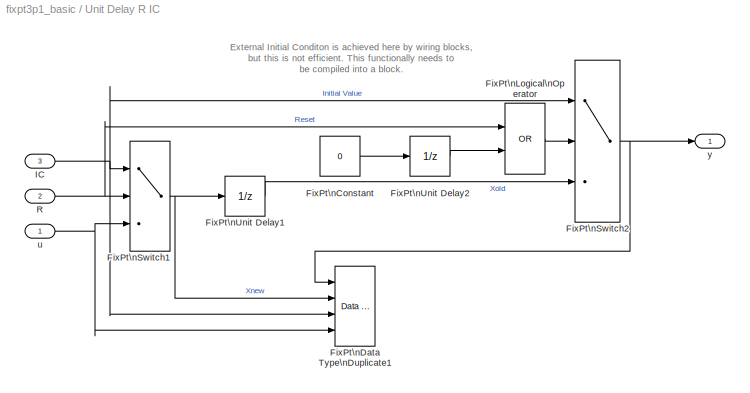
BLOCK [SubSystem] Unit Delay R IC
  MaskDescription = Resetable Unit Delay with External Initial Condition\nStart\n  x = IC   % Initial Condition\nOutput\n  If R   % Reset\n     y = IC   % Initial Condition\n  else\n     y = x\n  end\nUpdate\n  If R   % Reset\n     x = IC   % Initial Condition\n  else\n     x = u\n  end
  MaskDisplay = dpoly(1,[1 0],'z')\npatch([2 2 10 10 4 4 8 8 4 4 2 ],[2 10 10 8 8 6 6 4 4 2 2 ],[0 0 0],'bottom-right');
  MaskEnableString = on
  MaskHelp = web(fpbhelp('unitdelayric'));
  MaskIconFrame = on
  MaskIconOpaque = off
  MaskIconRotate = none
  MaskIconUnits = normalized
  MaskPromptString = Sample time:
  MaskSelfModifiable = on
  MaskStyleString = edit
  MaskToolTipString = on
  MaskTunableValueString = on
  MaskType = Fixed-Point Unit Delay Reset Initial_Condition
  MaskValueString = -1
  MaskVariables = tsamp=@1;
  MaskVisibilityString = on
  MinAlgLoopOccurrences = off
  Ports = [3, 1]
  PropExecContextAcrossSSBoundary = on
  RTWSystemCode = Auto
  TreatAsAtomicUnit = off
BLOCK [Constant] Unit Delay R IC/FixPt\nConstant
  OutDataType = uint(8)
  OutDataTypeMode = Specify via dialog
  OutScaling = 1
  Value = 0
BLOCK [Reference] Unit Delay R IC/FixPt\nData Type\nDuplicate1  REF=simulink/Signal\nAttributes/Data Type\nDuplicate
  NumInputPorts = 4
  Ports = [4]
  SourceBlock = simulink/Signal\nAttributes/Data Type\nDuplicate
  SourceType = Data Type Duplicate
BLOCK [Logic] Unit Delay R IC/FixPt\nLogical\nOperator
  AllPortsSameDT = off
  Operator = OR
  OutDataTypeMode = Specify via dialog
  Ports = [2, 1]
BLOCK [Switch] Unit Delay R IC/FixPt\nSwitch1
  InputSameDT = off
  OutDataTypeMode = Inherit via back propagation
  SaturateOnIntegerOverflow = off
  Threshold = 1
  ZeroCross = off
BLOCK [Switch] Unit Delay R IC/FixPt\nSwitch2
  InputSameDT = off
  OutDataTypeMode = Inherit via back propagation
  SaturateOnIntegerOverflow = off
  Threshold = 1
  ZeroCross = off
BLOCK [UnitDelay] Unit Delay R IC/FixPt\nUnit Delay1
  SampleTime = tsamp
  X0 = 0.0
BLOCK [UnitDelay] Unit Delay R IC/FixPt\nUnit Delay2
  SampleTime = tsamp
  X0 = 1
BLOCK [Inport] Unit Delay R IC/IC
  IconDisplay = Port number
  LatchInput = off
  Port = 3
BLOCK [Inport] Unit Delay R IC/R
  IconDisplay = Port number
  LatchInput = off
  Port = 2
BLOCK [Inport] Unit Delay R IC/u
  IconDisplay = Port number
  LatchInput = off
BLOCK [Outport] Unit Delay R IC/y
  BusOutputAsStruct = off
  IconDisplay = Port number
ANNOTATION (root): <copyright redacted>
ANNOTATION (root): Fixed-Point Library Version 3.1\nBasic Helper Blocks
ANNOTATION Average: Power of 2 Style Shift Block \nshould replace Gain Block
ANNOTATION Unit Delay E IC: External Initial Conditon is achieved here by wiring blocks,\nbut this is not efficient. This functionally needs to\nbe compiled into a block.
ANNOTATION Unit Delay E R IC: External Initial Conditon is achieved here by wiring blocks,\nbut this is not efficient. This functionally needs to\nbe compiled into a block.
ANNOTATION Unit Delay IC: External Initial Conditon is achieved here by wiring blocks,\nbut this is not efficient. This functionally needs to\nbe compiled into a block.
ANNOTATION Unit Delay R IC: External Initial Conditon is achieved here by wiring blocks,\nbut this is not efficient. This functionally needs to\nbe compiled into a block.
NET Average/FixPt\nGain:1 -> Average/FixPt\nData Type\nDuplicate:1, Average/Y:1
NET Average/FixPt\nSum:1 -> Average/FixPt\nData Type\nPropagation:3, Average/FixPt\nGain:1
NET Average/U1:1 -> Average/FixPt\nData Type\nDuplicate:3, Average/FixPt\nData Type\nPropagation:1, Average/FixPt\nData Type\nPropagation:2, Average/FixPt\nSum:1
NET Average/U2:1 -> Average/FixPt\nData Type\nDuplicate:2, Average/FixPt\nSum:2
LINE Closed Interval/FixPt\nLogical\nOperator:1 -> Closed Interval/y:1
LINE Closed Interval/FixPt\nRelational\nOperator1:1 -> Closed Interval/FixPt\nLogical\nOperator:2
LINE Closed Interval/FixPt\nRelational\nOperator:1 -> Closed Interval/FixPt\nLogical\nOperator:1
NET Closed Interval/Lower Limit:1 -> Closed Interval/FixPt\nData Type\nDuplicate:2, Closed Interval/FixPt\nRelational\nOperator:1
NET Closed Interval/Upper Limit:1 -> Closed Interval/FixPt\nData Type\nDuplicate:3, Closed Interval/FixPt\nRelational\nOperator1:2
NET Closed Interval/u:1 -> Closed Interval/FixPt\nData Type\nDuplicate:1, Closed Interval/FixPt\nRelational\nOperator1:1, Closed Interval/FixPt\nRelational\nOperator:2
NET EQ Constant/FixPt\nConstant:1 -> EQ Constant/FixPt\nData Type\nDuplicate:2, EQ Constant/FixPt\nRelational\nOperator:2
LINE EQ Constant/FixPt\nRelational\nOperator:1 -> EQ Constant/y:1
NET EQ Constant/u:1 -> EQ Constant/FixPt\nData Type\nDuplicate:1, EQ Constant/FixPt\nRelational\nOperator:1
LINE EnabledState/E:1 -> EnabledState/FixPt\nSwitch3:2
NET EnabledState/FixPt\nSwitch3:1 -> EnabledState/FixPt\nData Type\nDuplicate1:2, EnabledState/FixPt\nUnit Delay1:1, EnabledState/Xnew:1
NET EnabledState/FixPt\nUnit Delay1:1 -> EnabledState/FixPt\nData Type\nDuplicate1:1, EnabledState/FixPt\nSwitch3:3, EnabledState/Xold:1
NET EnabledState/Xcalc:1 -> EnabledState/FixPt\nData Type\nDuplicate1:3, EnabledState/FixPt\nSwitch3:1
NET FreeCounter/FixPt\nUnit Delay2:1 -> FreeCounter/Increment\nReal World:1, FreeCounter/y:1
NET FreeCounter/Increment\nReal World:1 -> FreeCounter/FixPt\nData Type\nPropagation:1, FreeCounter/FixPt\nData Type\nPropagation:2, FreeCounter/FixPt\nData Type\nPropagation:3, FreeCounter/FixPt\nUnit Delay2:1
NET GE Constant/FixPt\nConstant:1 -> GE Constant/FixPt\nData Type\nDuplicate:2, GE Constant/FixPt\nRelational\nOperator:2
LINE GE Constant/FixPt\nRelational\nOperator:1 -> GE Constant/y:1
NET GE Constant/u:1 -> GE Constant/FixPt\nData Type\nDuplicate:1, GE Constant/FixPt\nRelational\nOperator:1
NET GT Constant/FixPt\nConstant:1 -> GT Constant/FixPt\nData Type\nDuplicate:2, GT Constant/FixPt\nRelational\nOperator:2
LINE GT Constant/FixPt\nRelational\nOperator:1 -> GT Constant/y:1
NET GT Constant/u:1 -> GT Constant/FixPt\nData Type\nDuplicate:1, GT Constant/FixPt\nRelational\nOperator:1
NET LE Constant/FixPt\nConstant:1 -> LE Constant/FixPt\nData Type\nDuplicate:2, LE Constant/FixPt\nRelational\nOperator:2
LINE LE Constant/FixPt\nRelational\nOperator:1 -> LE Constant/y:1
NET LE Constant/u:1 -> LE Constant/FixPt\nData Type\nDuplicate:1, LE Constant/FixPt\nRelational\nOperator:1
NET LT Constant/FixPt\nConstant:1 -> LT Constant/FixPt\nData Type\nDuplicate:2, LT Constant/FixPt\nRelational\nOperator:2
LINE LT Constant/FixPt\nRelational\nOperator:1 -> LT Constant/y:1
NET LT Constant/u:1 -> LT Constant/FixPt\nData Type\nDuplicate:1, LT Constant/FixPt\nRelational\nOperator:1
NET LimitedCounter/FixPt\nConstant2:1 -> LimitedCounter/FixPt\nData Type\nDuplicate1:4, LimitedCounter/FixPt\nRelational\nOperator:2
LINE LimitedCounter/FixPt\nRelational\nOperator:1 -> LimitedCounter/FixPt\nSwitch:2
NET LimitedCounter/FixPt\nSwitch:1 -> LimitedCounter/FixPt\nData Type\nDuplicate1:1, LimitedCounter/FixPt\nUnit Delay2:1
NET LimitedCounter/FixPt\nUnit Delay2:1 -> LimitedCounter/Increment\nReal World:1, LimitedCounter/y:1
NET LimitedCounter/Ground:1 -> LimitedCounter/FixPt\nData Type\nDuplicate1:2, LimitedCounter/FixPt\nSwitch:3
NET LimitedCounter/Increment\nReal World:1 -> LimitedCounter/FixPt\nData Type\nDuplicate1:3, LimitedCounter/FixPt\nRelational\nOperator:1, LimitedCounter/FixPt\nSwitch:1
NET MaxLog/FixPt\nUnit Delay:1 -> MaxLog/FixPt\nData Type\nDuplicate:2, MaxLog/max low:2, MaxLog/y:1
NET MaxLog/max low:1 -> MaxLog/FixPt\nData Type\nDuplicate:1, MaxLog/FixPt\nUnit Delay:1
NET MaxLog/u:1 -> MaxLog/FixPt\nData Type\nDuplicate:3, MaxLog/max low:1
NET MinLog/FixPt\nUnit Delay:1 -> MinLog/FixPt\nData Type\nDuplicate:2, MinLog/min:2, MinLog/y:1
NET MinLog/min:1 -> MinLog/FixPt\nData Type\nDuplicate:1, MinLog/FixPt\nUnit Delay:1
NET MinLog/u:1 -> MinLog/FixPt\nData Type\nDuplicate:3, MinLog/min:1
NET NE Constant/FixPt\nConstant:1 -> NE Constant/FixPt\nData Type\nDuplicate:2, NE Constant/FixPt\nRelational\nOperator:2
LINE NE Constant/FixPt\nRelational\nOperator:1 -> NE Constant/y:1
NET NE Constant/u:1 -> NE Constant/FixPt\nData Type\nDuplicate:1, NE Constant/FixPt\nRelational\nOperator:1
LINE ResetEnabledState/E:1 -> ResetEnabledState/FixPt\nSwitch3:2
NET ResetEnabledState/FixPt\nSwitch1:1 -> ResetEnabledState/FixPt\nData Type\nDuplicate1:2, ResetEnabledState/FixPt\nUnit Delay1:1, ResetEnabledState/Xnew:1
NET ResetEnabledState/FixPt\nSwitch3:1 -> ResetEnabledState/FixPt\nData Type\nDuplicate1:4, ResetEnabledState/FixPt\nSwitch1:3
NET ResetEnabledState/FixPt\nUnit Delay1:1 -> ResetEnabledState/FixPt\nData Type\nDuplicate1:1, ResetEnabledState/FixPt\nSwitch3:3, ResetEnabledState/Xold:1
NET ResetEnabledState/IV:1 -> ResetEnabledState/FixPt\nData Type\nDuplicate1:3, ResetEnabledState/FixPt\nSwitch1:1
LINE ResetEnabledState/R:1 -> ResetEnabledState/FixPt\nSwitch1:2
NET ResetEnabledState/Xcalc:1 -> ResetEnabledState/FixPt\nData Type\nDuplicate1:5, ResetEnabledState/FixPt\nSwitch3:1
NET ResetState/FixPt\nSwitch1:1 -> ResetState/FixPt\nData Type\nDuplicate1:2, ResetState/FixPt\nUnit Delay1:1, ResetState/Xnew:1
NET ResetState/FixPt\nUnit Delay1:1 -> ResetState/FixPt\nData Type\nDuplicate1:1, ResetState/Xold:1
NET ResetState/IV:1 -> ResetState/FixPt\nData Type\nDuplicate1:3, ResetState/FixPt\nSwitch1:1
LINE ResetState/R:1 -> ResetState/FixPt\nSwitch1:2
NET ResetState/Xcalc:1 -> ResetState/FixPt\nData Type\nDuplicate1:4, ResetState/FixPt\nSwitch1:3
LINE Unit Delay E IC/E:1 -> Unit Delay E IC/FixPt\nSwitch3:2
LINE Unit Delay E IC/FixPt\nConstant:1 -> Unit Delay E IC/FixPt\nUnit Delay2:1
NET Unit Delay E IC/FixPt\nSwitch2:1 -> Unit Delay E IC/FixPt\nData Type\nDuplicate1:1, Unit Delay E IC/FixPt\nSwitch3:3, Unit Delay E IC/y:1
NET Unit Delay E IC/FixPt\nSwitch3:1 -> Unit Delay E IC/FixPt\nData Type\nDuplicate1:2, Unit Delay E IC/FixPt\nUnit Delay1:1
LINE Unit Delay E IC/FixPt\nUnit Delay1:1 -> Unit Delay E IC/FixPt\nSwitch2:3
LINE Unit Delay E IC/FixPt\nUnit Delay2:1 -> Unit Delay E IC/FixPt\nSwitch2:2
NET Unit Delay E IC/IC:1 -> Unit Delay E IC/FixPt\nData Type\nDuplicate1:3, Unit Delay E IC/FixPt\nSwitch2:1
NET Unit Delay E IC/u:1 -> Unit Delay E IC/FixPt\nData Type\nDuplicate1:4, Unit Delay E IC/FixPt\nSwitch3:1
LINE Unit Delay E R IC/E:1 -> Unit Delay E R IC/FixPt\nSwitch3:2
LINE Unit Delay E R IC/FixPt\nConstant:1 -> Unit Delay E R IC/FixPt\nUnit Delay2:1
LINE Unit Delay E R IC/FixPt\nLogical\nOperator:1 -> Unit Delay E R IC/FixPt\nSwitch2:2
NET Unit Delay E R IC/FixPt\nSwitch1:1 -> Unit Delay E R IC/FixPt\nData Type\nDuplicate1:2, Unit Delay E R IC/FixPt\nUnit Delay1:1
NET Unit Delay E R IC/FixPt\nSwitch2:1 -> Unit Delay E R IC/FixPt\nData Type\nDuplicate1:1, Unit Delay E R IC/FixPt\nSwitch3:3, Unit Delay E R IC/y:1
NET Unit Delay E R IC/FixPt\nSwitch3:1 -> Unit Delay E R IC/FixPt\nData Type\nDuplicate1:4, Unit Delay E R IC/FixPt\nSwitch1:3
LINE Unit Delay E R IC/FixPt\nUnit Delay1:1 -> Unit Delay E R IC/FixPt\nSwitch2:3
LINE Unit Delay E R IC/FixPt\nUnit Delay2:1 -> Unit Delay E R IC/FixPt\nLogical\nOperator:2
NET Unit Delay E R IC/IC:1 -> Unit Delay E R IC/FixPt\nData Type\nDuplicate1:3, Unit Delay E R IC/FixPt\nSwitch1:1, Unit Delay E R IC/FixPt\nSwitch2:1
NET Unit Delay E R IC/R:1 -> Unit Delay E R IC/FixPt\nLogical\nOperator:1, Unit Delay E R IC/FixPt\nSwitch1:2
NET Unit Delay E R IC/u:1 -> Unit Delay E R IC/FixPt\nData Type\nDuplicate1:5, Unit Delay E R IC/FixPt\nSwitch3:1
LINE Unit Delay E/E:1 -> Unit Delay E/FixPt\nSwitch3:2
NET Unit Delay E/FixPt\nSwitch3:1 -> Unit Delay E/FixPt\nData Type\nDuplicate1:2, Unit Delay E/FixPt\nUnit Delay1:1
NET Unit Delay E/FixPt\nUnit Delay1:1 -> Unit Delay E/FixPt\nData Type\nDuplicate1:1, Unit Delay E/FixPt\nSwitch3:3, Unit Delay E/y:1
NET Unit Delay E/u:1 -> Unit Delay E/FixPt\nData Type\nDuplicate1:3, Unit Delay E/FixPt\nSwitch3:1
LINE Unit Delay IC/FixPt\nConstant:1 -> Unit Delay IC/FixPt\nUnit Delay2:1
NET Unit Delay IC/FixPt\nSwitch2:1 -> Unit Delay IC/FixPt\nData Type\nDuplicate1:1, Unit Delay IC/y:1
LINE Unit Delay IC/FixPt\nUnit Delay1:1 -> Unit Delay IC/FixPt\nSwitch2:3
LINE Unit Delay IC/FixPt\nUnit Delay2:1 -> Unit Delay IC/FixPt\nSwitch2:2
NET Unit Delay IC/IC:1 -> Unit Delay IC/FixPt\nData Type\nDuplicate1:3, Unit Delay IC/FixPt\nSwitch2:1
NET Unit Delay IC/u:1 -> Unit Delay IC/FixPt\nData Type\nDuplicate1:2, Unit Delay IC/FixPt\nUnit Delay1:1
LINE Unit Delay R IC/FixPt\nConstant:1 -> Unit Delay R IC/FixPt\nUnit Delay2:1
LINE Unit Delay R IC/FixPt\nLogical\nOperator:1 -> Unit Delay R IC/FixPt\nSwitch2:2
NET Unit Delay R IC/FixPt\nSwitch1:1 -> Unit Delay R IC/FixPt\nData Type\nDuplicate1:2, Unit Delay R IC/FixPt\nUnit Delay1:1
NET Unit Delay R IC/FixPt\nSwitch2:1 -> Unit Delay R IC/FixPt\nData Type\nDuplicate1:1, Unit Delay R IC/y:1
LINE Unit Delay R IC/FixPt\nUnit Delay1:1 -> Unit Delay R IC/FixPt\nSwitch2:3
LINE Unit Delay R IC/FixPt\nUnit Delay2:1 -> Unit Delay R IC/FixPt\nLogical\nOperator:2
NET Unit Delay R IC/IC:1 -> Unit Delay R IC/FixPt\nData Type\nDuplicate1:3, Unit Delay R IC/FixPt\nSwitch1:1, Unit Delay R IC/FixPt\nSwitch2:1
NET Unit Delay R IC/R:1 -> Unit Delay R IC/FixPt\nLogical\nOperator:1, Unit Delay R IC/FixPt\nSwitch1:2
NET Unit Delay R IC/u:1 -> Unit Delay R IC/FixPt\nData Type\nDuplicate1:4, Unit Delay R IC/FixPt\nSwitch1:3
note: NET lines group one-source signal fan-out (src -> all destinations, sorted); 1:1 wires keep LINE
